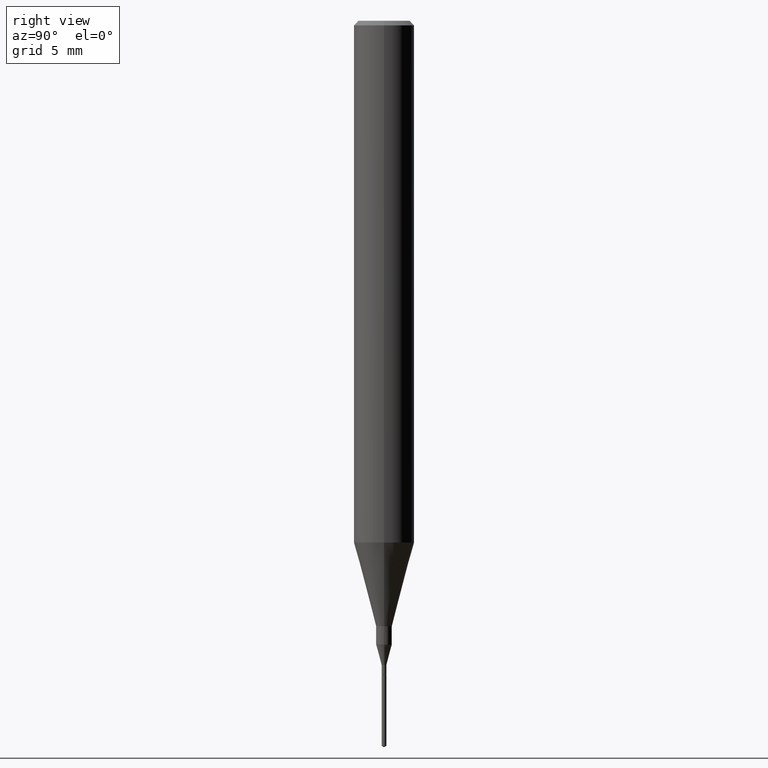
[diagram: clean part render]
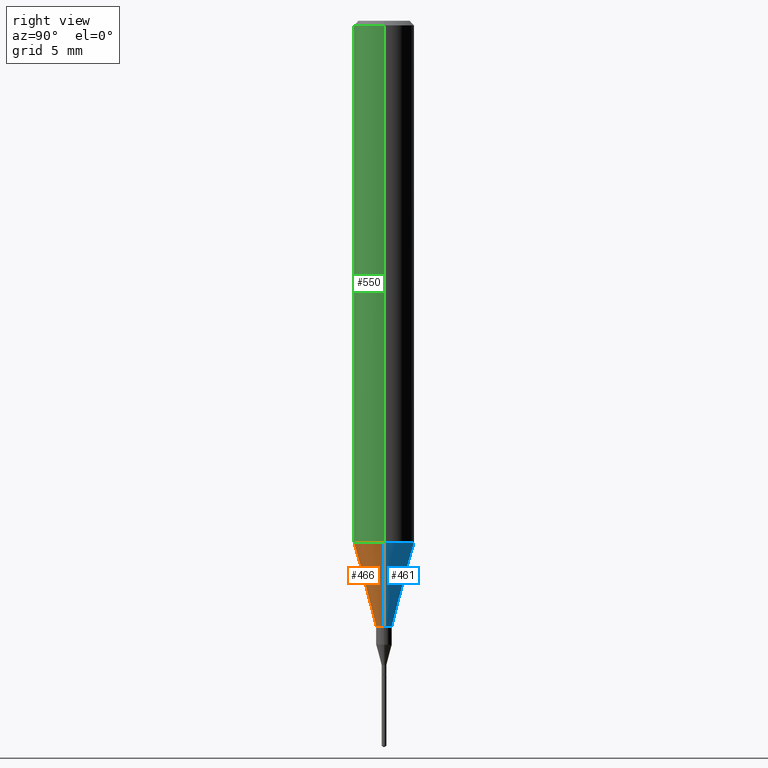
[diagram: same view with three faces highlighted in distinct colors, each labeled with its STEP entity id]
A machine part, right view with three faces highlighted in distinct colors.
Their STEP definitions:

[orange] entity #466 — the highlighted conical surface has half-angle 15 deg.
#9 = CONICAL_SURFACE ( 'NONE', #340, 0.06250000000000012490, 0.2617993877991501295 ) ;
#45 = EDGE_CURVE ( 'NONE', #462, #153, #221, .T. ) ;
#55 = CARTESIAN_POINT ( 'NONE',  ( -0.06250000000000012490, -3.317607122755211895E-15, -1.077392650149939346 ) ) ;
#60 = DIRECTION ( 'NONE',  ( 0.2588190451025214611, 1.565188264969621573E-15, 0.9659258262890682012 ) ) ;
#85 = CARTESIAN_POINT ( 'NONE',  ( 2.634730117954813298E-29, -3.761696332605275695E-15, -1.077392650149939346 ) ) ;
#92 = CARTESIAN_POINT ( 'NONE',  ( 0.01624999999999999709, -4.477824817066334148E-15, -1.250000000000000000 ) ) ;
#94 = VECTOR ( 'NONE', #60, 39.37007874015747433 ) ;
#95 = ORIENTED_EDGE ( 'NONE', *, *, #373, .F. ) ;
#98 = EDGE_CURVE ( 'NONE', #153, #445, #430, .T. ) ;
#124 = AXIS2_PLACEMENT_3D ( 'NONE', #333, #196, #520 ) ;
#134 = FACE_OUTER_BOUND ( 'NONE', #349, .T. ) ;
#143 = LINE ( 'NONE', #55, #187 ) ;
#153 = VERTEX_POINT ( 'NONE', #92 ) ;
#164 = EDGE_CURVE ( 'NONE', #462, #392, #143, .T. ) ;
#177 = DIRECTION ( 'NONE',  ( 1.000000000000000000, -6.982962677686264344E-15, 0.000000000000000000 ) ) ;
#179 = CARTESIAN_POINT ( 'NONE',  ( 0.06250000000000012490, -4.198131499960668153E-15, -1.077392650149939346 ) ) ;
#187 = VECTOR ( 'NONE', #541, 39.37007874015747433 ) ;
#196 = DIRECTION ( 'NONE',  ( -2.445468806185136597E-29, 3.491481338843145583E-15, 1.000000000000000000 ) ) ;
#221 = CIRCLE ( 'NONE', #124, 0.01624999999999999709 ) ;
#226 = CARTESIAN_POINT ( 'NONE',  ( -0.01624999999999999709, -4.315298589681791643E-15, -1.250000000000000000 ) ) ;
#333 = CARTESIAN_POINT ( 'NONE',  ( 3.056836007731421306E-29, -4.364351673553932471E-15, -1.250000000000000000 ) ) ;
#340 = AXIS2_PLACEMENT_3D ( 'NONE', #85, #408, #177 ) ;
#349 = EDGE_LOOP ( 'NONE', ( #437, #566, #402, #95 ) ) ;
#373 = EDGE_CURVE ( 'NONE', #392, #445, #453, .T. ) ;
#392 = VERTEX_POINT ( 'NONE', #546 ) ;
#399 = DIRECTION ( 'NONE',  ( -2.445468806185136597E-29, 3.491481338843145583E-15, 1.000000000000000000 ) ) ;
#402 = ORIENTED_EDGE ( 'NONE', *, *, #98, .T. ) ;
#408 = DIRECTION ( 'NONE',  ( -2.445468806185136597E-29, 3.491481338843145583E-15, 1.000000000000000000 ) ) ;
#430 = LINE ( 'NONE', #470, #94 ) ;
#437 = ORIENTED_EDGE ( 'NONE', *, *, #164, .F. ) ;
#445 = VERTEX_POINT ( 'NONE', #179 ) ;
#448 = CARTESIAN_POINT ( 'NONE',  ( 2.634730117954813298E-29, -3.761696332605275695E-15, -1.077392650149939346 ) ) ;
#453 = CIRCLE ( 'NONE', #484, 0.06250000000000012490 ) ;
#462 = VERTEX_POINT ( 'NONE', #226 ) ;
#466 = ADVANCED_FACE ( 'NONE', ( #134 ), #9, .T. ) ;
#470 = CARTESIAN_POINT ( 'NONE',  ( 0.06250000000000012490, -4.198131499960668153E-15, -1.077392650149939346 ) ) ;
#484 = AXIS2_PLACEMENT_3D ( 'NONE', #448, #399, #553 ) ;
#520 = DIRECTION ( 'NONE',  ( 1.000000000000000000, -6.982962677686288799E-15, 0.000000000000000000 ) ) ;
#541 = DIRECTION ( 'NONE',  ( -0.2588190451025214611, 5.211531920934551042E-15, 0.9659258262890682012 ) ) ;
#546 = CARTESIAN_POINT ( 'NONE',  ( -0.06250000000000012490, -3.317607122755211895E-15, -1.077392650149939346 ) ) ;
#553 = DIRECTION ( 'NONE',  ( 1.000000000000000000, -6.982962677686264344E-15, 0.000000000000000000 ) ) ;
#566 = ORIENTED_EDGE ( 'NONE', *, *, #45, .T. ) ;

[blue] entity #461 — the highlighted conical surface has half-angle 15 deg.
#8 = AXIS2_PLACEMENT_3D ( 'NONE', #318, #89, #540 ) ;
#16 = DIRECTION ( 'NONE',  ( -2.445468806185136597E-29, 3.491481338843145583E-15, 1.000000000000000000 ) ) ;
#27 = DIRECTION ( 'NONE',  ( 1.000000000000000000, -6.982962677686288799E-15, 0.000000000000000000 ) ) ;
#55 = CARTESIAN_POINT ( 'NONE',  ( -0.06250000000000012490, -3.317607122755211895E-15, -1.077392650149939346 ) ) ;
#60 = DIRECTION ( 'NONE',  ( 0.2588190451025214611, 1.565188264969621573E-15, 0.9659258262890682012 ) ) ;
#80 = ORIENTED_EDGE ( 'NONE', *, *, #98, .F. ) ;
#89 = DIRECTION ( 'NONE',  ( -2.445468806185136597E-29, 3.491481338843145583E-15, 1.000000000000000000 ) ) ;
#92 = CARTESIAN_POINT ( 'NONE',  ( 0.01624999999999999709, -4.477824817066334148E-15, -1.250000000000000000 ) ) ;
#94 = VECTOR ( 'NONE', #60, 39.37007874015747433 ) ;
#98 = EDGE_CURVE ( 'NONE', #153, #445, #430, .T. ) ;
#105 = EDGE_CURVE ( 'NONE', #153, #462, #513, .T. ) ;
#110 = CIRCLE ( 'NONE', #386, 0.06250000000000012490 ) ;
#128 = CARTESIAN_POINT ( 'NONE',  ( 2.634730117954813298E-29, -3.761696332605275695E-15, -1.077392650149939346 ) ) ;
#136 = FACE_OUTER_BOUND ( 'NONE', #538, .T. ) ;
#143 = LINE ( 'NONE', #55, #187 ) ;
#153 = VERTEX_POINT ( 'NONE', #92 ) ;
#164 = EDGE_CURVE ( 'NONE', #462, #392, #143, .T. ) ;
#166 = ORIENTED_EDGE ( 'NONE', *, *, #519, .F. ) ;
#171 = DIRECTION ( 'NONE',  ( -2.445468806185136597E-29, 3.491481338843145583E-15, 1.000000000000000000 ) ) ;
#179 = CARTESIAN_POINT ( 'NONE',  ( 0.06250000000000012490, -4.198131499960668153E-15, -1.077392650149939346 ) ) ;
#187 = VECTOR ( 'NONE', #541, 39.37007874015747433 ) ;
#226 = CARTESIAN_POINT ( 'NONE',  ( -0.01624999999999999709, -4.315298589681791643E-15, -1.250000000000000000 ) ) ;
#263 = CONICAL_SURFACE ( 'NONE', #8, 0.06250000000000012490, 0.2617993877991501295 ) ;
#308 = DIRECTION ( 'NONE',  ( 1.000000000000000000, -6.982962677686264344E-15, 0.000000000000000000 ) ) ;
#318 = CARTESIAN_POINT ( 'NONE',  ( 2.634730117954813298E-29, -3.761696332605275695E-15, -1.077392650149939346 ) ) ;
#386 = AXIS2_PLACEMENT_3D ( 'NONE', #128, #171, #308 ) ;
#392 = VERTEX_POINT ( 'NONE', #546 ) ;
#398 = ORIENTED_EDGE ( 'NONE', *, *, #164, .T. ) ;
#425 = CARTESIAN_POINT ( 'NONE',  ( 3.056836007731421306E-29, -4.364351673553932471E-15, -1.250000000000000000 ) ) ;
#430 = LINE ( 'NONE', #470, #94 ) ;
#445 = VERTEX_POINT ( 'NONE', #179 ) ;
#446 = ORIENTED_EDGE ( 'NONE', *, *, #105, .T. ) ;
#461 = ADVANCED_FACE ( 'NONE', ( #136 ), #263, .T. ) ;
#462 = VERTEX_POINT ( 'NONE', #226 ) ;
#470 = CARTESIAN_POINT ( 'NONE',  ( 0.06250000000000012490, -4.198131499960668153E-15, -1.077392650149939346 ) ) ;
#509 = AXIS2_PLACEMENT_3D ( 'NONE', #425, #16, #27 ) ;
#513 = CIRCLE ( 'NONE', #509, 0.01624999999999999709 ) ;
#519 = EDGE_CURVE ( 'NONE', #445, #392, #110, .T. ) ;
#538 = EDGE_LOOP ( 'NONE', ( #446, #398, #166, #80 ) ) ;
#540 = DIRECTION ( 'NONE',  ( 1.000000000000000000, -6.982962677686264344E-15, 0.000000000000000000 ) ) ;
#541 = DIRECTION ( 'NONE',  ( -0.2588190451025214611, 5.211531920934551042E-15, 0.9659258262890682012 ) ) ;
#546 = CARTESIAN_POINT ( 'NONE',  ( -0.06250000000000012490, -3.317607122755211895E-15, -1.077392650149939346 ) ) ;

[green] entity #550 — the highlighted cylindrical surface (edge-blend (fillet) strip) has radius 1.5875 mm, axis along (-0, 0, 1).
#11 = EDGE_CURVE ( 'NONE', #392, #486, #62, .T. ) ;
#21 = DIRECTION ( 'NONE',  ( -2.445468806185136877E-29, 3.491481338843145188E-15, 1.000000000000000000 ) ) ;
#54 = EDGE_CURVE ( 'NONE', #486, #443, #268, .T. ) ;
#57 = DIRECTION ( 'NONE',  ( -2.445468806185136877E-29, 3.491481338843145188E-15, 1.000000000000000000 ) ) ;
#58 = CARTESIAN_POINT ( 'NONE',  ( 0.06250000000000006939, -4.364351673553921624E-16, 3.047610484872463374E-30 ) ) ;
#62 = LINE ( 'NONE', #246, #104 ) ;
#103 = DIRECTION ( 'NONE',  ( -2.445468806185136597E-29, 3.491481338843145583E-15, 1.000000000000000000 ) ) ;
#104 = VECTOR ( 'NONE', #21, 39.37007874015748143 ) ;
#112 = CARTESIAN_POINT ( 'NONE',  ( 2.292627005798580186E-31, -3.273263755165470184E-17, -0.009375000000000060368 ) ) ;
#114 = DIRECTION ( 'NONE',  ( 1.000000000000000000, -6.982962677686266711E-15, 0.000000000000000000 ) ) ;
#139 = DIRECTION ( 'NONE',  ( 1.000000000000000000, -6.982962677686266711E-15, 4.876176775795935793E-29 ) ) ;
#174 = ORIENTED_EDGE ( 'NONE', *, *, #373, .T. ) ;
#179 = CARTESIAN_POINT ( 'NONE',  ( 0.06250000000000012490, -4.198131499960668153E-15, -1.077392650149939346 ) ) ;
#238 = FACE_OUTER_BOUND ( 'NONE', #332, .T. ) ;
#246 = CARTESIAN_POINT ( 'NONE',  ( -0.06250000000000006939, 4.440892098500631092E-16, -3.074334431409319267E-30 ) ) ;
#265 = CARTESIAN_POINT ( 'NONE',  ( -0.06250000000000000000, -1.453125275228401137E-15, -0.009375000000000060368 ) ) ;
#268 = CIRCLE ( 'NONE', #341, 0.06250000000000000000 ) ;
#280 = CYLINDRICAL_SURFACE ( 'NONE', #502, 0.06250000000000006939 ) ;
#284 = VECTOR ( 'NONE', #57, 39.37007874015748143 ) ;
#327 = ORIENTED_EDGE ( 'NONE', *, *, #54, .F. ) ;
#332 = EDGE_LOOP ( 'NONE', ( #585, #174, #375, #327 ) ) ;
#341 = AXIS2_PLACEMENT_3D ( 'NONE', #112, #474, #114 ) ;
#367 = CARTESIAN_POINT ( 'NONE',  ( 0.06250000000000000000, -4.691678049070463404E-16, -0.009375000000000060368 ) ) ;
#373 = EDGE_CURVE ( 'NONE', #392, #445, #453, .T. ) ;
#375 = ORIENTED_EDGE ( 'NONE', *, *, #529, .T. ) ;
#381 = LINE ( 'NONE', #58, #284 ) ;
#392 = VERTEX_POINT ( 'NONE', #546 ) ;
#399 = DIRECTION ( 'NONE',  ( -2.445468806185136597E-29, 3.491481338843145583E-15, 1.000000000000000000 ) ) ;
#443 = VERTEX_POINT ( 'NONE', #367 ) ;
#445 = VERTEX_POINT ( 'NONE', #179 ) ;
#448 = CARTESIAN_POINT ( 'NONE',  ( 2.634730117954813298E-29, -3.761696332605275695E-15, -1.077392650149939346 ) ) ;
#453 = CIRCLE ( 'NONE', #484, 0.06250000000000012490 ) ;
#474 = DIRECTION ( 'NONE',  ( -2.445468806185136597E-29, 3.491481338843145583E-15, 1.000000000000000000 ) ) ;
#484 = AXIS2_PLACEMENT_3D ( 'NONE', #448, #399, #553 ) ;
#486 = VERTEX_POINT ( 'NONE', #265 ) ;
#502 = AXIS2_PLACEMENT_3D ( 'NONE', #512, #103, #139 ) ;
#512 = CARTESIAN_POINT ( 'NONE',  ( 0.000000000000000000, 0.000000000000000000, 0.000000000000000000 ) ) ;
#529 = EDGE_CURVE ( 'NONE', #445, #443, #381, .T. ) ;
#546 = CARTESIAN_POINT ( 'NONE',  ( -0.06250000000000012490, -3.317607122755211895E-15, -1.077392650149939346 ) ) ;
#550 = ADVANCED_FACE ( 'NONE', ( #238 ), #280, .T. ) ;
#553 = DIRECTION ( 'NONE',  ( 1.000000000000000000, -6.982962677686264344E-15, 0.000000000000000000 ) ) ;
#585 = ORIENTED_EDGE ( 'NONE', *, *, #11, .F. ) ;